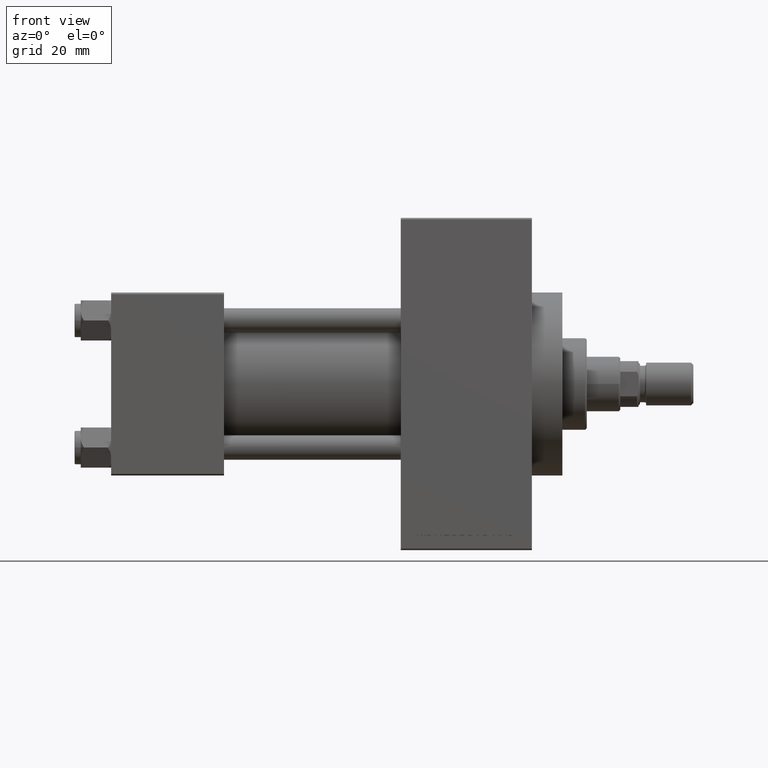
[diagram: clean part render]
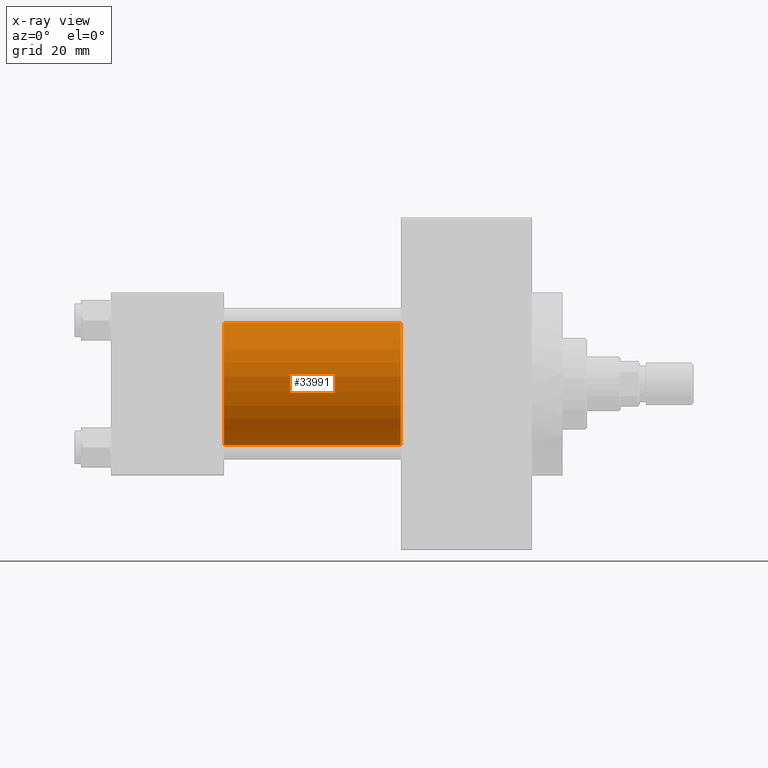
[diagram: x-ray — body ghosted, one internal face saturated and labeled with its STEP entity id]
A machine part, front view, then the same camera in x-ray: the body is ghosted and one INTERNAL B-rep face — a face not visible from any outside direction — is saturated and labeled: STEP entity #33991.
In plain terms, the highlighted cylindrical surface (partial cylindrical patch) has radius 20 mm, axis along (-1, -0, -0).
Its self-contained STEP definition (entity closure, byte-faithful):
#59 = EDGE_CURVE ( 'NONE', #36731, #23000, #8333, .T. ) ;
#225 = VECTOR ( 'NONE', #14477, 1000.000000000000000 ) ;
#567 = CARTESIAN_POINT ( 'NONE',  ( 95.00000000000000000, -2.602085213965210642E-15, 0.000000000000000000 ) ) ;
#1012 = DIRECTION ( 'NONE',  ( 0.000000000000000000, 0.000000000000000000, -1.000000000000000000 ) ) ;
#1853 = AXIS2_PLACEMENT_3D ( 'NONE', #12618, #47775, #1012 ) ;
#2388 = CARTESIAN_POINT ( 'NONE',  ( 95.00000000000000000, -2.602085213965210642E-15, 20.00000000000000000 ) ) ;
#5351 = CARTESIAN_POINT ( 'NONE',  ( 95.00000000000000000, -1.527916156705046464E-16, -20.00000000000000000 ) ) ;
#5686 = LINE ( 'NONE', #9726, #33834 ) ;
#8320 = EDGE_CURVE ( 'NONE', #22732, #35384, #37504, .T. ) ;
#8333 = CIRCLE ( 'NONE', #1853, 20.00000000000000000 ) ;
#8867 = DIRECTION ( 'NONE',  ( 0.000000000000000000, 0.000000000000000000, -1.000000000000000000 ) ) ;
#9251 = AXIS2_PLACEMENT_3D ( 'NONE', #10005, #44959, #36927 ) ;
#9726 = CARTESIAN_POINT ( 'NONE',  ( 95.00000000000000000, -1.527916156705046464E-16, -20.00000000000000000 ) ) ;
#10005 = CARTESIAN_POINT ( 'NONE',  ( 95.00000000000000000, -2.602085213965210642E-15, 0.000000000000000000 ) ) ;
#12618 = CARTESIAN_POINT ( 'NONE',  ( 37.00000000000000000, -2.602085213965210642E-15, 0.000000000000000000 ) ) ;
#14477 = DIRECTION ( 'NONE',  ( -1.000000000000000000, -0.000000000000000000, -0.000000000000000000 ) ) ;
#16109 = CARTESIAN_POINT ( 'NONE',  ( 37.00000000000000000, -1.527916156705046464E-16, -20.00000000000000000 ) ) ;
#16788 = EDGE_CURVE ( 'NONE', #35384, #23000, #5686, .T. ) ;
#18333 = ORIENTED_EDGE ( 'NONE', *, *, #39602, .F. ) ;
#22732 = VERTEX_POINT ( 'NONE', #48804 ) ;
#23000 = VERTEX_POINT ( 'NONE', #16109 ) ;
#23644 = CARTESIAN_POINT ( 'NONE',  ( 37.00000000000000000, -2.602085213965210642E-15, 20.00000000000000000 ) ) ;
#25814 = LINE ( 'NONE', #2388, #225 ) ;
#27274 = DIRECTION ( 'NONE',  ( 1.000000000000000000, 0.000000000000000000, 0.000000000000000000 ) ) ;
#29635 = FACE_OUTER_BOUND ( 'NONE', #30784, .T. ) ;
#30784 = EDGE_LOOP ( 'NONE', ( #42045, #39768, #34273, #18333 ) ) ;
#33834 = VECTOR ( 'NONE', #42538, 1000.000000000000000 ) ;
#33991 = ADVANCED_FACE ( 'NONE', ( #29635 ), #47730, .F. ) ;
#34273 = ORIENTED_EDGE ( 'NONE', *, *, #59, .F. ) ;
#35384 = VERTEX_POINT ( 'NONE', #5351 ) ;
#36731 = VERTEX_POINT ( 'NONE', #23644 ) ;
#36927 = DIRECTION ( 'NONE',  ( 0.000000000000000000, 0.000000000000000000, 1.000000000000000000 ) ) ;
#37504 = CIRCLE ( 'NONE', #47943, 20.00000000000000000 ) ;
#39602 = EDGE_CURVE ( 'NONE', #22732, #36731, #25814, .T. ) ;
#39768 = ORIENTED_EDGE ( 'NONE', *, *, #16788, .T. ) ;
#42045 = ORIENTED_EDGE ( 'NONE', *, *, #8320, .T. ) ;
#42538 = DIRECTION ( 'NONE',  ( -1.000000000000000000, -0.000000000000000000, -0.000000000000000000 ) ) ;
#44959 = DIRECTION ( 'NONE',  ( -1.000000000000000000, -0.000000000000000000, -0.000000000000000000 ) ) ;
#47730 = CYLINDRICAL_SURFACE ( 'NONE', #9251, 20.00000000000000000 ) ;
#47775 = DIRECTION ( 'NONE',  ( 1.000000000000000000, 0.000000000000000000, 0.000000000000000000 ) ) ;
#47943 = AXIS2_PLACEMENT_3D ( 'NONE', #567, #27274, #8867 ) ;
#48804 = CARTESIAN_POINT ( 'NONE',  ( 95.00000000000000000, -2.602085213965210642E-15, 20.00000000000000000 ) ) ;